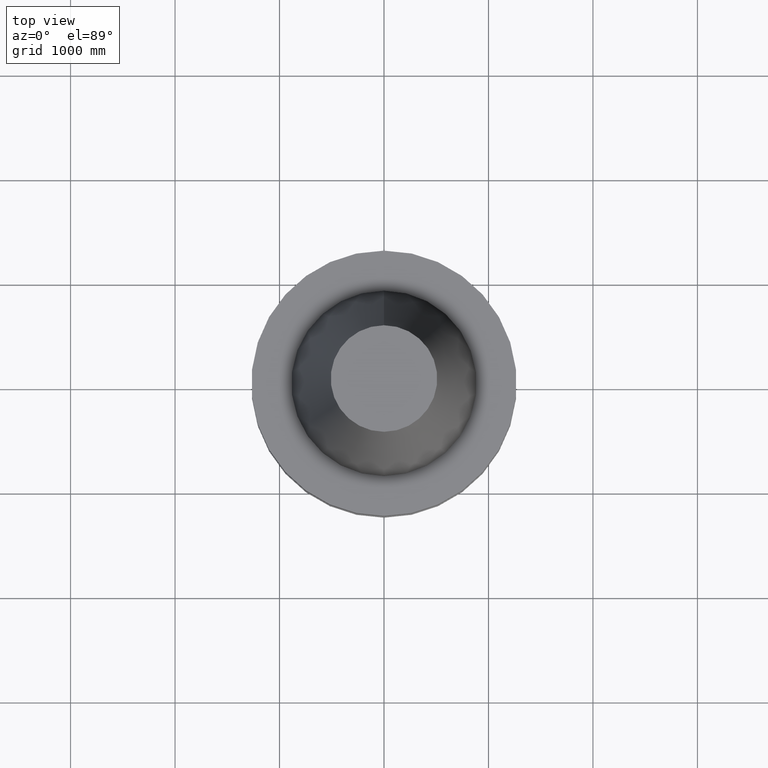
[diagram: clean part render]
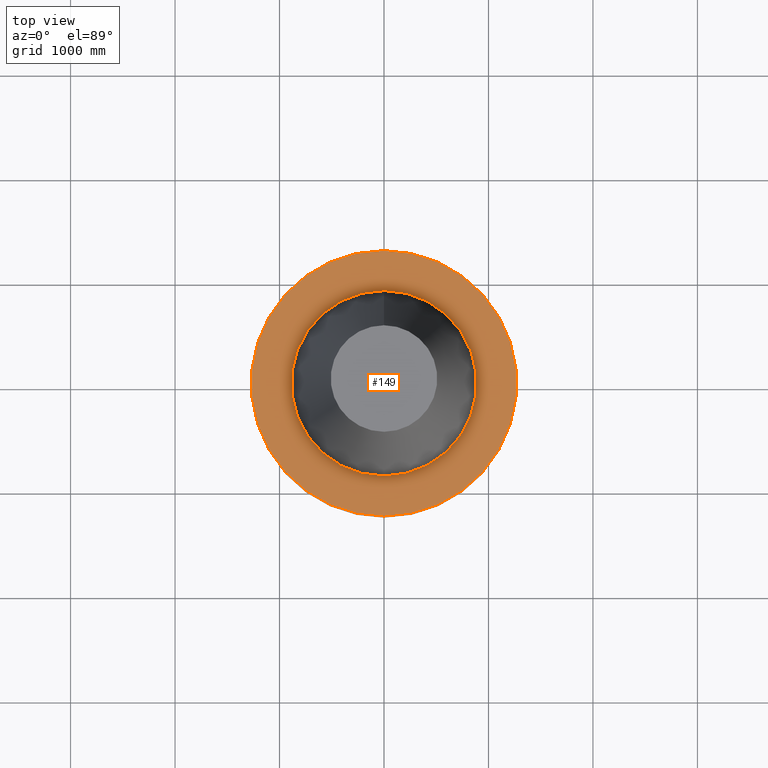
[diagram: same view with one face highlighted and labeled with its STEP entity id]
A machine part, top view. The second image highlights one B-rep face of the part: STEP entity #149.
In plain terms, the highlighted planar face has unit normal (-0, -0, 1).
Its self-contained STEP definition (entity closure, byte-faithful):
#92=EDGE_CURVE('Unnamed[1]',#228,#228,#229,.T.);
#149=ADVANCED_FACE('Unnamed[1]',(#313,#314),#315,.T.);
#175=EDGE_CURVE('Unnamed[1]',#354,#354,#355,.T.);
#228=VERTEX_POINT('',#411);
#229=CIRCLE('',#412,50.0);
#313=FACE_BOUND('',#516,.T.);
#314=FACE_OUTER_BOUND('',#517,.T.);
#315=PLANE('',#518);
#354=VERTEX_POINT('',#567);
#355=CIRCLE('',#568,34.925);
#411=CARTESIAN_POINT('',(9.18485099360509E-017,50.0,-1.49999999999999));
#412=AXIS2_PLACEMENT_3D('',#610,#611,#612);
#516=EDGE_LOOP('',(#701));
#517=EDGE_LOOP('',(#702));
#518=AXIS2_PLACEMENT_3D('',#703,#704,#705);
#567=CARTESIAN_POINT('',(9.18485099360511E-017,34.925,-1.5));
#568=AXIS2_PLACEMENT_3D('',#749,#750,#751);
#610=CARTESIAN_POINT('',(9.18485099360515E-017,1.46024574888838E-014,-1.5));
#611=DIRECTION('',(-6.12323399573677E-017,-1.52619998477039E-017,1.0));
#612=DIRECTION('',(-5.76168069387682E-033,1.0,1.52619998477039E-017));
#701=ORIENTED_EDGE('',*,*,#175,.F.);
#702=ORIENTED_EDGE('',*,*,#92,.T.);
#703=CARTESIAN_POINT('',(9.1848509936051E-017,42.4625,-1.49999999999999));
#704=DIRECTION('',(-6.12323399573677E-017,-1.22464679914735E-016,1.0));
#705=DIRECTION('',(-1.23259516440783E-032,1.0,1.22464679914735E-016));
#749=CARTESIAN_POINT('',(9.18485099360515E-017,1.46024574888838E-014,-1.5));
#750=DIRECTION('',(-6.12323399573677E-017,-1.52619998477369E-017,1.0));
#751=DIRECTION('',(-5.761680693874E-033,1.0,1.52619998477369E-017));